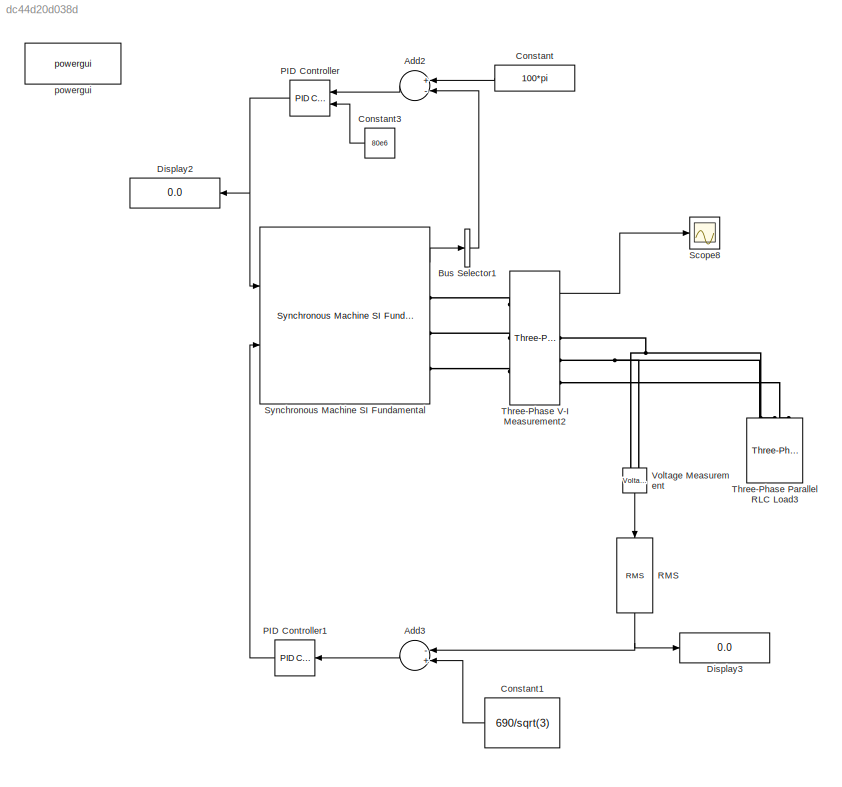
MODEL slx_dc44d20d038d
KIND model
CONFIG AbsTol = auto
CONFIG FixedStep = auto
CONFIG MaxStep = auto
CONFIG MinStep = auto
CONFIG RelTol = 1e-3
CONFIG SampleTimeConstraint = Unconstrained
CONFIG Solver = VariableStepAuto
CONFIG SolverMode = Auto
CONFIG SolverName = VariableStepAuto
CONFIG StartTime = 0.0
CONFIG StopTime = 10.0
BLOCK [Sum] Add2
  InputSameDT = off
  Inputs = +-
  OutDataTypeStr = Inherit: Inherit via internal rule
  Ports = [2, 1]
  SaturateOnIntegerOverflow = off
BLOCK [Sum] Add3
  InputSameDT = off
  Inputs = -+
  OutDataTypeStr = Inherit: Inherit via internal rule
  Ports = [2, 1]
  SaturateOnIntegerOverflow = off
BLOCK [BusSelector] Bus Selector1
  OutputAsBus = on
  OutputSignals = Mechanical.Rotor speed  wm (rad/s)
  Ports = [1, 1]
BLOCK [Constant] Constant
  Value = 100*pi
BLOCK [Constant] Constant1
  Value = 690/sqrt(3)
BLOCK [Constant] Constant3
  Value = 80e6
BLOCK [Display] Display2
  Decimation = 1
  Ports = [1]
BLOCK [Display] Display3
  Decimation = 1
  Ports = [1]
BLOCK [Reference] PID Controller  REF=simulink/Continuous/PID Controller
  Ports = [2, 1]
  SourceBlock = simulink/Continuous/PID Controller
  SourceType = PID 1dof
BLOCK [Reference] PID Controller1  REF=simulink/Continuous/PID Controller
  Ports = [1, 1]
  SourceBlock = simulink/Continuous/PID Controller
  SourceType = PID 1dof
BLOCK [Reference] RMS  REF=dspstat3/RMS
  Ports = [1, 1]
  SourceBlock = dspstat3/RMS
  SourceType = RMS
  UserDataPersistent = on
BLOCK [Scope] Scope8
  Ports = [1]
  ScopeSpecificationString = Simulink.scopes.TimeScopeBlockCfg('CurrentConfiguration', extmgr.ConfigurationSet(extmgr.Configuration('Core','General UI',true),extmgr.Configuration('Core','Source UI',true),extmgr.Configuration('Sources','WiredSimulink',true),extmgr.Configuration('Visuals','Time Domain',true,'SerializedDisplays',{struct('MinYLimReal','-235.29028','MaxYLimReal','251.71283','YLabelReal','','MinYLimMag',' 0.00000',...<+1522ch>
BLOCK [Reference] Synchronous Machine SI Fundamental  REF=powerlib/Machines/Synchronous Machine
SI Fundamental
  Ports = [2, 1, 0, 0, 0, 0, 3]
  SourceBlock = powerlib/Machines/Synchronous Machine\nSI Fundamental
  SourceType = Synchronous Machine
BLOCK [Reference] Three-Phase Parallel RLC Load3  REF=powerlib/Elements/Three-Phase
Parallel RLC Load
  AttributesFormatString = \n
  Ports = [0, 0, 0, 0, 0, 3]
  SourceBlock = powerlib/Elements/Three-Phase\nParallel RLC Load
  SourceType = Three-Phase Parallel RLC Load
BLOCK [Reference] Three-Phase V-I Measurement2  REF=powerlib/Measurements/Three-Phase
V-I Measurement
  Ports = [0, 2, 0, 0, 0, 3, 3]
  SourceBlock = powerlib/Measurements/Three-Phase\nV-I Measurement
  SourceType = Three-Phase VI Measurement
BLOCK [Reference] Voltage Measurement  REF=powerlib/Measurements/Voltage Measurement
  Ports = [0, 1, 0, 0, 0, 2]
  SourceBlock = powerlib/Measurements/Voltage Measurement
  SourceType = Voltage Measurement
  UserDataPersistent = on
BLOCK [Reference] powergui  REF=powerlib/powergui
  Ports = []
  Priority = 2
  SourceBlock = powerlib/powergui
  SourceType = PSB option menu block
LINE Add2:1 -> PID Controller:1
LINE Add3:1 -> PID Controller1:1
LINE Bus Selector1:1 -> Add2:2
LINE Constant1:1 -> Add3:2
LINE Constant3:1 -> PID Controller:2
LINE Constant:1 -> Add2:1
LINE PID Controller1:1 -> Synchronous Machine SI Fundamental:2
NET PID Controller:1 -> Display2:1, Synchronous Machine SI Fundamental:1
NET RMS:1 -> Add3:1, Display3:1
LINE Synchronous Machine SI Fundamental:1 -> Bus Selector1:1
LINE Three-Phase V-I Measurement2:1 -> Scope8:1
LINE Voltage Measurement:1 -> RMS:1
PLINE Synchronous Machine SI Fundamental:RConn1 -- Three-Phase V-I Measurement2:LConn1
PLINE Synchronous Machine SI Fundamental:RConn2 -- Three-Phase V-I Measurement2:LConn2
PLINE Synchronous Machine SI Fundamental:RConn3 -- Three-Phase V-I Measurement2:LConn3
PNET net1: Three-Phase Parallel RLC Load3:LConn1 -- Three-Phase V-I Measurement2:RConn1 -- Voltage Measurement:LConn1
PNET net2: Three-Phase Parallel RLC Load3:LConn2 -- Three-Phase V-I Measurement2:RConn2 -- Voltage Measurement:LConn2
PLINE Three-Phase Parallel RLC Load3:LConn3 -- Three-Phase V-I Measurement2:RConn3
note: NET lines group one-source signal fan-out (src -> all destinations, sorted); 1:1 wires keep LINE; PNET lines group multi-terminal physical nets as a canonical sorted terminal list (undirected conserving connections); 2-terminal nets keep the pairwise PLINE form
